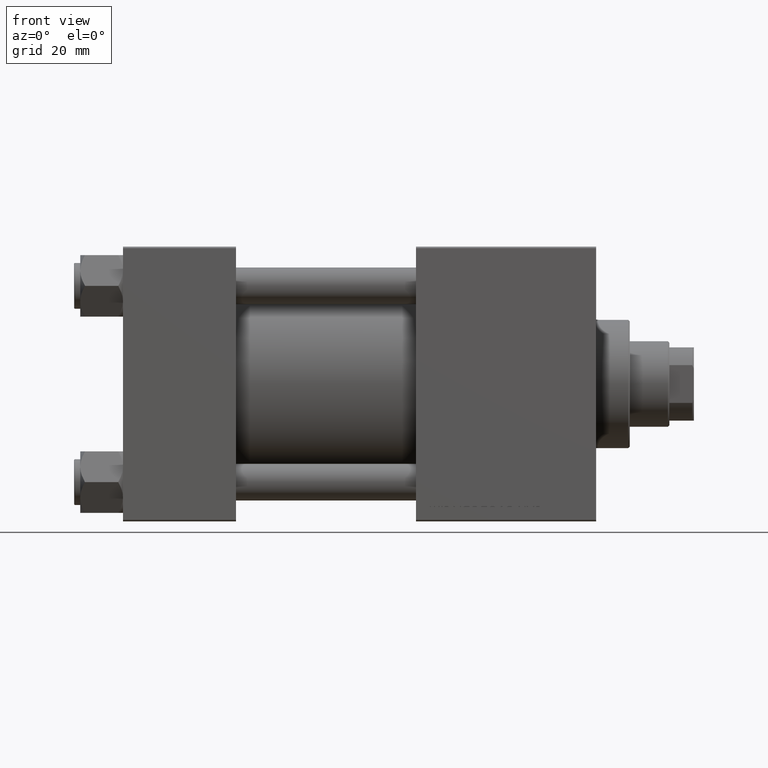
[diagram: clean part render]
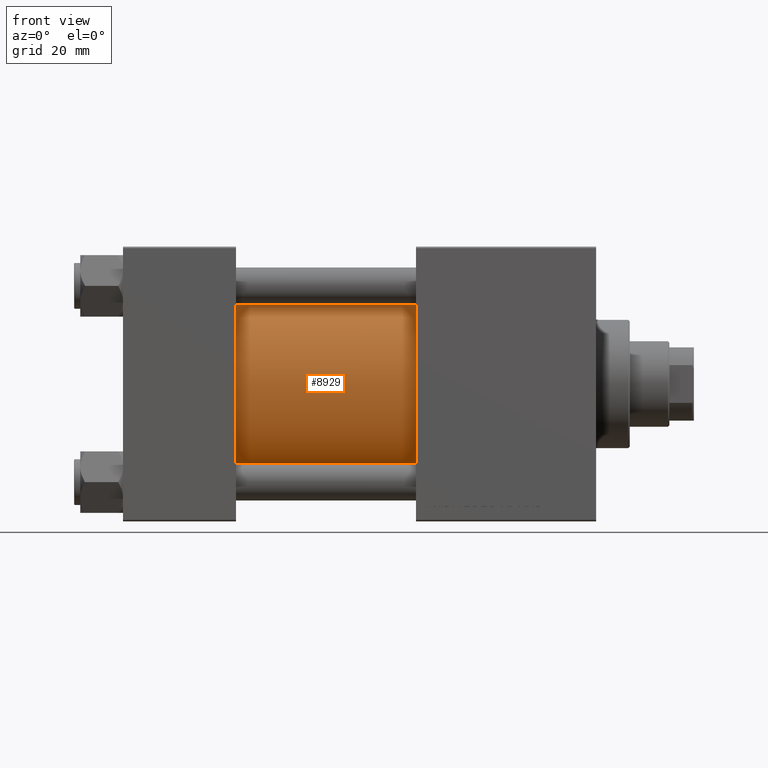
[diagram: same view with one face highlighted and labeled with its STEP entity id]
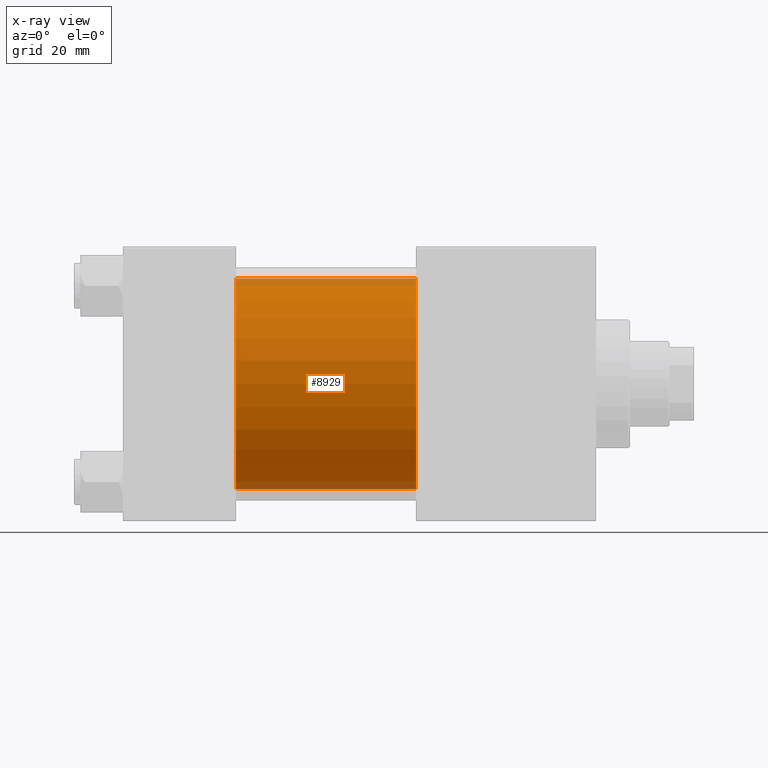
[diagram: x-ray of the same camera — body ghosted, the highlighted face saturated]
A machine part, front view. The second image highlights one B-rep face of the part: STEP entity #8929.
The next image is the same camera in x-ray: the body ghosted, the highlighted face saturated — about 7% of this face is hidden behind the body in this view.
In plain terms, the highlighted cylindrical surface (partial cylindrical patch) has radius 34.5 mm, axis along (-1, -0, -0).
Its self-contained STEP definition (entity closure, byte-faithful):
#928 = EDGE_CURVE ( 'NONE', #11447, #32365, #7019, .T. ) ;
#995 = VERTEX_POINT ( 'NONE', #49619 ) ;
#1260 = EDGE_LOOP ( 'NONE', ( #27515, #41433, #1327, #49365 ) ) ;
#1327 = ORIENTED_EDGE ( 'NONE', *, *, #36766, .T. ) ;
#4686 = CARTESIAN_POINT ( 'NONE',  ( 37.00000000000000000, -2.602085213965210642E-15, 34.50000000000000000 ) ) ;
#4865 = CARTESIAN_POINT ( 'NONE',  ( 96.00000000000000000, 1.622946243093158675E-15, -34.50000000000000000 ) ) ;
#5450 = FACE_OUTER_BOUND ( 'NONE', #1260, .T. ) ;
#5914 = DIRECTION ( 'NONE',  ( -1.000000000000000000, -0.000000000000000000, -0.000000000000000000 ) ) ;
#7019 = CIRCLE ( 'NONE', #7814, 34.50000000000000000 ) ;
#7814 = AXIS2_PLACEMENT_3D ( 'NONE', #25482, #37175, #41229 ) ;
#8767 = DIRECTION ( 'NONE',  ( -1.000000000000000000, -0.000000000000000000, -0.000000000000000000 ) ) ;
#8929 = ADVANCED_FACE ( 'NONE', ( #5450 ), #25248, .T. ) ;
#9237 = CARTESIAN_POINT ( 'NONE',  ( 96.00000000000000000, 1.622946243093158675E-15, -34.50000000000000000 ) ) ;
#9768 = DIRECTION ( 'NONE',  ( 1.000000000000000000, 0.000000000000000000, 0.000000000000000000 ) ) ;
#10530 = CARTESIAN_POINT ( 'NONE',  ( 96.00000000000000000, -2.602085213965210642E-15, 0.000000000000000000 ) ) ;
#11447 = VERTEX_POINT ( 'NONE', #4686 ) ;
#18480 = CARTESIAN_POINT ( 'NONE',  ( 37.00000000000000000, 1.622946243093158675E-15, -34.50000000000000000 ) ) ;
#19464 = AXIS2_PLACEMENT_3D ( 'NONE', #47373, #8767, #39741 ) ;
#19620 = EDGE_CURVE ( 'NONE', #995, #25797, #45461, .T. ) ;
#24427 = CARTESIAN_POINT ( 'NONE',  ( 96.00000000000000000, -2.602085213965210642E-15, 34.50000000000000000 ) ) ;
#25248 = CYLINDRICAL_SURFACE ( 'NONE', #19464, 34.50000000000000000 ) ;
#25482 = CARTESIAN_POINT ( 'NONE',  ( 37.00000000000000000, -2.602085213965210642E-15, 0.000000000000000000 ) ) ;
#25797 = VERTEX_POINT ( 'NONE', #4865 ) ;
#26020 = DIRECTION ( 'NONE',  ( 0.000000000000000000, 0.000000000000000000, -1.000000000000000000 ) ) ;
#27515 = ORIENTED_EDGE ( 'NONE', *, *, #39608, .F. ) ;
#32365 = VERTEX_POINT ( 'NONE', #18480 ) ;
#33202 = VECTOR ( 'NONE', #5914, 1000.000000000000000 ) ;
#34140 = AXIS2_PLACEMENT_3D ( 'NONE', #10530, #9768, #26020 ) ;
#35534 = VECTOR ( 'NONE', #39906, 1000.000000000000000 ) ;
#35864 = LINE ( 'NONE', #24427, #35534 ) ;
#36766 = EDGE_CURVE ( 'NONE', #995, #11447, #35864, .T. ) ;
#37175 = DIRECTION ( 'NONE',  ( 1.000000000000000000, -0.000000000000000000, 0.000000000000000000 ) ) ;
#39608 = EDGE_CURVE ( 'NONE', #25797, #32365, #40696, .T. ) ;
#39741 = DIRECTION ( 'NONE',  ( 0.000000000000000000, 0.000000000000000000, 1.000000000000000000 ) ) ;
#39906 = DIRECTION ( 'NONE',  ( -1.000000000000000000, -0.000000000000000000, -0.000000000000000000 ) ) ;
#40696 = LINE ( 'NONE', #9237, #33202 ) ;
#41229 = DIRECTION ( 'NONE',  ( 0.000000000000000000, 0.000000000000000000, 1.000000000000000000 ) ) ;
#41433 = ORIENTED_EDGE ( 'NONE', *, *, #19620, .F. ) ;
#45461 = CIRCLE ( 'NONE', #34140, 34.50000000000000000 ) ;
#47373 = CARTESIAN_POINT ( 'NONE',  ( 96.00000000000000000, -2.602085213965210642E-15, 0.000000000000000000 ) ) ;
#49365 = ORIENTED_EDGE ( 'NONE', *, *, #928, .T. ) ;
#49619 = CARTESIAN_POINT ( 'NONE',  ( 96.00000000000000000, -2.602085213965210642E-15, 34.50000000000000000 ) ) ;